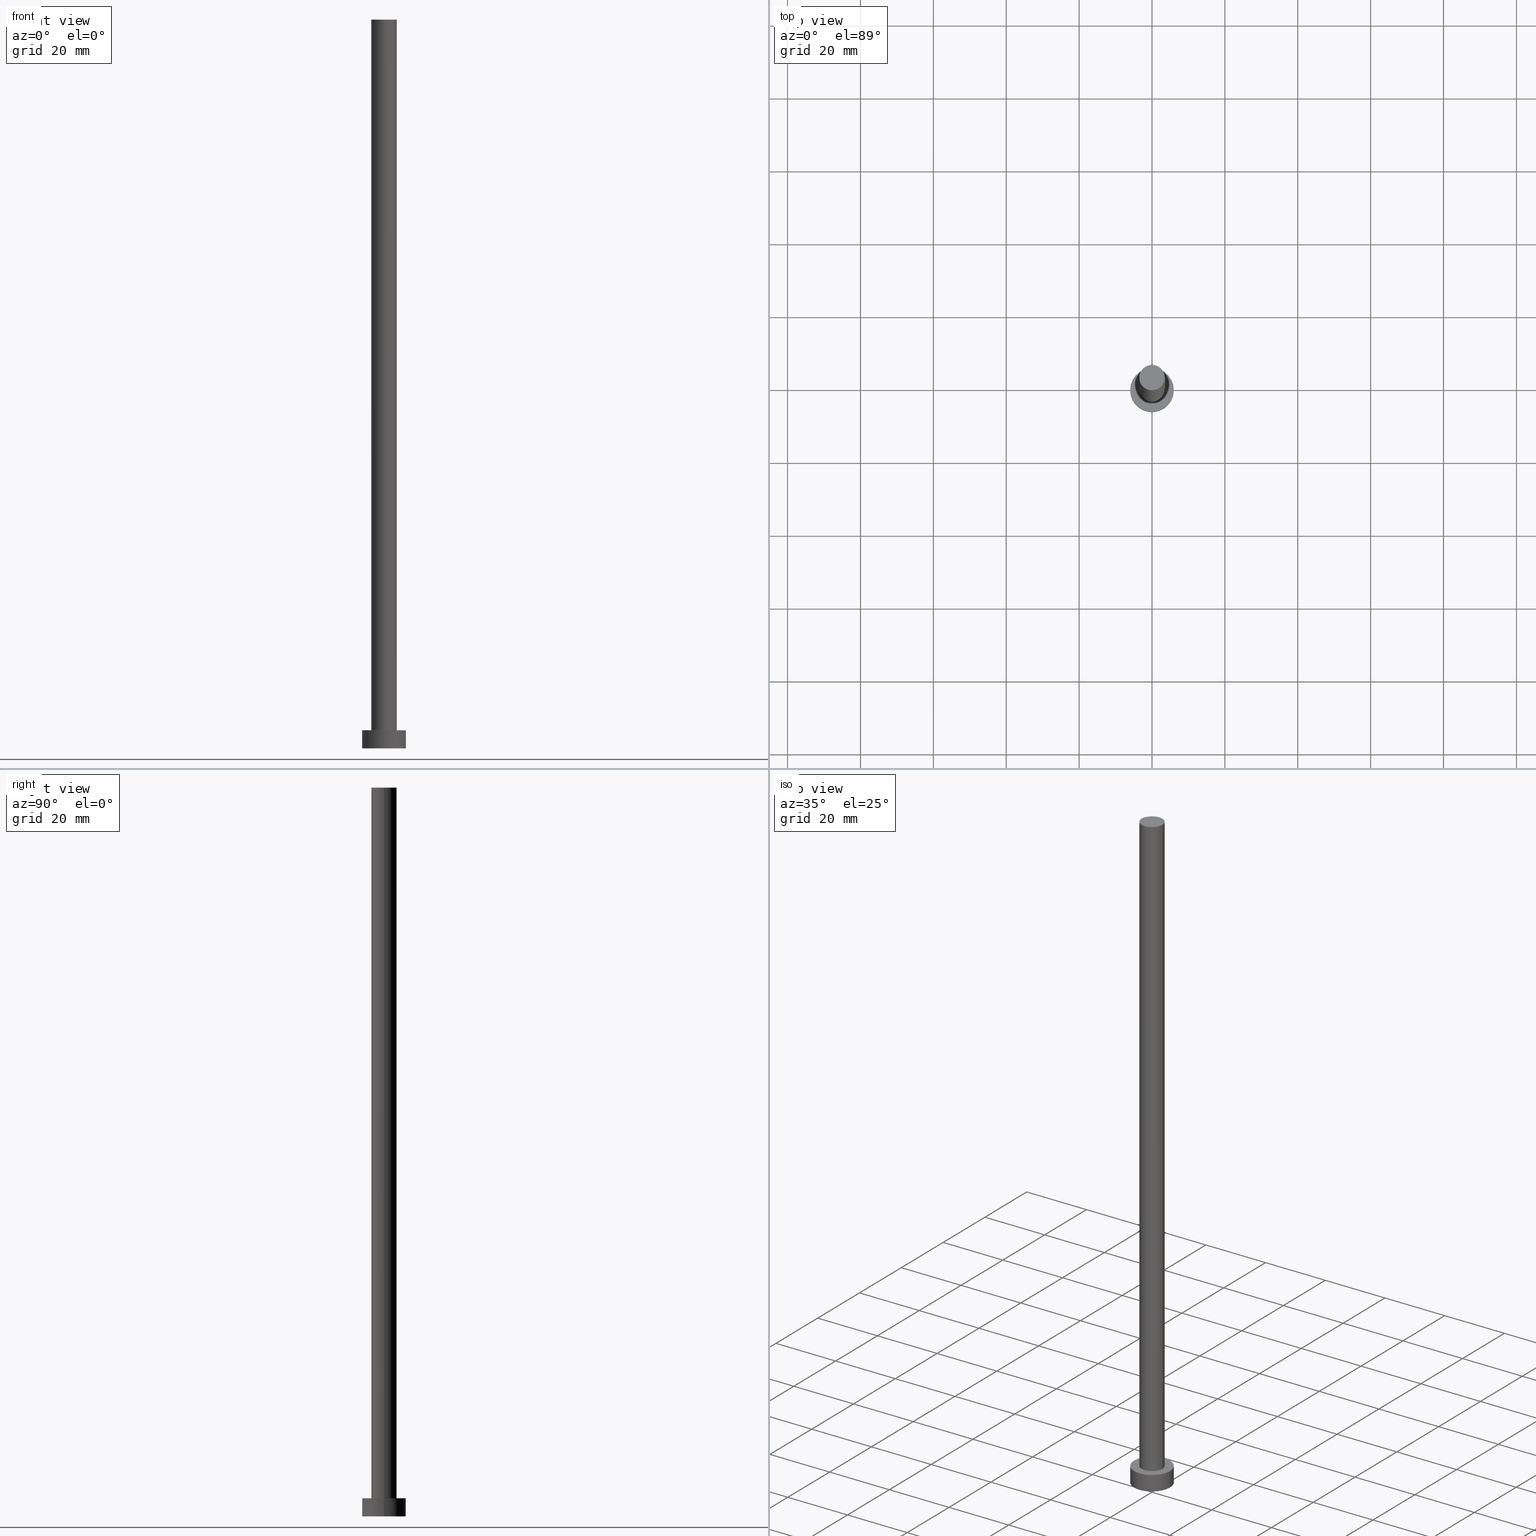
[diagram: canonical four-view strip — front | top / right | iso, engineering-drawing reading convention]
A machine part, canonical four-view strip (front | top / right | iso — engineering-drawing reading convention). The complete STEP part file that produces these views, byte-faithful:
ISO-10303-21;
HEADER;
FILE_DESCRIPTION (( 'STEP AP203' ),
    '1' );
FILE_NAME ('d8b9.STEP',
    '2023-02-12T11:29:27',
    ( '' ),
    ( '' ),
    'SwSTEP 2.0',
    'SolidWorks 2019',
    '' );
FILE_SCHEMA (( 'CONFIG_CONTROL_DESIGN' ));
ENDSEC;

DATA;
#1 = PERSON_AND_ORGANIZATION_ROLE ( 'creator' ) ;
#2 = DIRECTION ( 'NONE',  ( 0.000000000000000000, 0.000000000000000000, 1.000000000000000000 ) ) ;
#3 = CALENDAR_DATE ( 2023, 12, 2 ) ;
#4 = ORIENTED_EDGE ( 'NONE', *, *, #112, .F. ) ;
#5 = PERSON_AND_ORGANIZATION ( #86, #62 ) ;
#6 = VERTEX_POINT ( 'NONE', #33 ) ;
#7 = CIRCLE ( 'NONE', #61, 6.000000000000000888 ) ;
#8 = CC_DESIGN_APPROVAL ( #168, ( #133 ) ) ;
#9 = ADVANCED_BREP_SHAPE_REPRESENTATION ( 'd8b9', ( #42, #156 ), #165 ) ;
#10 = VERTEX_POINT ( 'NONE', #140 ) ;
#11 = DIRECTION ( 'NONE',  ( 1.000000000000000000, 0.000000000000000000, -0.000000000000000000 ) ) ;
#12 = SECURITY_CLASSIFICATION_LEVEL ( 'unclassified' ) ;
#13 = CARTESIAN_POINT ( 'NONE',  ( 0.000000000000000000, 0.000000000000000000, 5.000000000000000000 ) ) ;
#14 = VECTOR ( 'NONE', #58, 1000.000000000000000 ) ;
#15 = DIRECTION ( 'NONE',  ( 0.000000000000000000, 0.000000000000000000, 1.000000000000000000 ) ) ;
#16 = PERSON_AND_ORGANIZATION_ROLE ( 'creator' ) ;
#17 = DIRECTION ( 'NONE',  ( 0.000000000000000000, 0.000000000000000000, 1.000000000000000000 ) ) ;
#18 = ORIENTED_EDGE ( 'NONE', *, *, #66, .F. ) ;
#19 = ADVANCED_FACE ( 'NONE', ( #97, #100 ), #254, .T. ) ;
#20 = AXIS2_PLACEMENT_3D ( 'NONE', #152, #55, #11 ) ;
#21 = EDGE_LOOP ( 'NONE', ( #214, #148 ) ) ;
#22 = DESIGN_CONTEXT ( 'detailed design', #170, 'design' ) ;
#23 = EDGE_CURVE ( 'NONE', #35, #6, #136, .T. ) ;
#24 = DIRECTION ( 'NONE',  ( 0.000000000000000000, 0.000000000000000000, 1.000000000000000000 ) ) ;
#25 = DIRECTION ( 'NONE',  ( 0.000000000000000000, 0.000000000000000000, 1.000000000000000000 ) ) ;
#26 = APPROVAL_DATE_TIME ( #67, #168 ) ;
#27 = DIRECTION ( 'NONE',  ( -0.000000000000000000, -0.000000000000000000, -1.000000000000000000 ) ) ;
#28 = EDGE_CURVE ( 'NONE', #128, #106, #130, .T. ) ;
#29 = DIRECTION ( 'NONE',  ( -1.000000000000000000, 0.000000000000000000, 0.000000000000000000 ) ) ;
#30 = ORIENTED_EDGE ( 'NONE', *, *, #207, .T. ) ;
#31 = CARTESIAN_POINT ( 'NONE',  ( -3.500000000000000000, 0.000000000000000000, 200.0000000000000000 ) ) ;
#32 = PRODUCT_DEFINITION_FORMATION_WITH_SPECIFIED_SOURCE ( 'LIBOVOLN�', '', #73, .NOT_KNOWN. ) ;
#33 = CARTESIAN_POINT ( 'NONE',  ( -3.500000000000000000, 0.000000000000000000, 5.000000000000000000 ) ) ;
#34 = EDGE_CURVE ( 'NONE', #69, #81, #101, .T. ) ;
#35 = VERTEX_POINT ( 'NONE', #191 ) ;
#36 = FACE_OUTER_BOUND ( 'NONE', #68, .T. ) ;
#37 = ORIENTED_EDGE ( 'NONE', *, *, #23, .F. ) ;
#38 = ORIENTED_EDGE ( 'NONE', *, *, #28, .T. ) ;
#39 = EDGE_LOOP ( 'NONE', ( #111, #30, #38, #4 ) ) ;
#40 = DIRECTION ( 'NONE',  ( 1.000000000000000000, 0.000000000000000000, 0.000000000000000000 ) ) ;
#41 = EDGE_CURVE ( 'NONE', #81, #69, #7, .T. ) ;
#42 = MANIFOLD_SOLID_BREP ( 'P�idat vysunut�m3', #224 ) ;
#43 = DIRECTION ( 'NONE',  ( -1.000000000000000000, 0.000000000000000000, 0.000000000000000000 ) ) ;
#44 = CALENDAR_DATE ( 2023, 12, 2 ) ;
#45 = AXIS2_PLACEMENT_3D ( 'NONE', #182, #2, #49 ) ;
#46 = COORDINATED_UNIVERSAL_TIME_OFFSET ( 1, 0, .AHEAD. ) ;
#47 = CARTESIAN_POINT ( 'NONE',  ( 0.000000000000000000, 0.000000000000000000, 5.000000000000000000 ) ) ;
#48 = PRODUCT_RELATED_PRODUCT_CATEGORY ( 'detail', '', ( #73 ) ) ;
#49 = DIRECTION ( 'NONE',  ( 1.000000000000000000, 0.000000000000000000, 0.000000000000000000 ) ) ;
#50 = COORDINATED_UNIVERSAL_TIME_OFFSET ( 1, 0, .AHEAD. ) ;
#51 = CC_DESIGN_PERSON_AND_ORGANIZATION_ASSIGNMENT ( #249, #16, ( #133 ) ) ;
#52 = ORIENTED_EDGE ( 'NONE', *, *, #66, .T. ) ;
#53 = ORIENTED_EDGE ( 'NONE', *, *, #89, .F. ) ;
#54 = ORIENTED_EDGE ( 'NONE', *, *, #34, .F. ) ;
#55 = DIRECTION ( 'NONE',  ( 0.000000000000000000, 0.000000000000000000, 1.000000000000000000 ) ) ;
#56 = AXIS2_PLACEMENT_3D ( 'NONE', #131, #70, #200 ) ;
#57 = DATE_TIME_ROLE ( 'creation_date' ) ;
#58 = DIRECTION ( 'NONE',  ( -0.000000000000000000, -0.000000000000000000, -1.000000000000000000 ) ) ;
#59 = ADVANCED_FACE ( 'NONE', ( #232 ), #125, .T. ) ;
#60 = CARTESIAN_POINT ( 'NONE',  ( 6.000000000000000888, 7.347880794884120722E-16, 5.000000000000000000 ) ) ;
#61 = AXIS2_PLACEMENT_3D ( 'NONE', #13, #138, #158 ) ;
#62 = ORGANIZATION ( 'NEUR�EN�', 'NEUR�EN�', '' ) ;
#63 = FACE_OUTER_BOUND ( 'NONE', #39, .T. ) ;
#64 = PERSON_AND_ORGANIZATION ( #86, #62 ) ;
#65 = MECHANICAL_CONTEXT ( 'NONE', #154, 'mechanical' ) ;
#66 = EDGE_CURVE ( 'NONE', #106, #128, #108, .T. ) ;
#67 = DATE_AND_TIME ( #3, #244 ) ;
#68 = EDGE_LOOP ( 'NONE', ( #18, #173 ) ) ;
#69 = VERTEX_POINT ( 'NONE', #159 ) ;
#70 = DIRECTION ( 'NONE',  ( 0.000000000000000000, 0.000000000000000000, 1.000000000000000000 ) ) ;
#71 = LINE ( 'NONE', #93, #132 ) ;
#72 = CARTESIAN_POINT ( 'NONE',  ( 6.000000000000000888, 7.347880794884120722E-16, 0.000000000000000000 ) ) ;
#73 = PRODUCT ( 'd8b9', 'd8b9', '', ( #65 ) ) ;
#74 = AXIS2_PLACEMENT_3D ( 'NONE', #78, #15, #227 ) ;
#75 = LINE ( 'NONE', #92, #14 ) ;
#76 = ADVANCED_FACE ( 'NONE', ( #63 ), #210, .T. ) ;
#77 = DIRECTION ( 'NONE',  ( -1.000000000000000000, 0.000000000000000000, 0.000000000000000000 ) ) ;
#78 = CARTESIAN_POINT ( 'NONE',  ( 0.000000000000000000, 0.000000000000000000, 5.000000000000000000 ) ) ;
#79 = DIRECTION ( 'NONE',  ( -0.000000000000000000, -0.000000000000000000, -1.000000000000000000 ) ) ;
#80 = CARTESIAN_POINT ( 'NONE',  ( 0.000000000000000000, 0.000000000000000000, 0.000000000000000000 ) ) ;
#81 = VERTEX_POINT ( 'NONE', #60 ) ;
#82 = CC_DESIGN_PERSON_AND_ORGANIZATION_ASSIGNMENT ( #5, #1, ( #32 ) ) ;
#83 = DATE_AND_TIME ( #213, #236 ) ;
#84 = ORIENTED_EDGE ( 'NONE', *, *, #193, .F. ) ;
#85 = AXIS2_PLACEMENT_3D ( 'NONE', #234, #231, #77 ) ;
#86 = PERSON ( 'NEUR�EN�', 'NEUR�EN�', 'NEUR�EN�', ('NEUR�EN�'), ('NEUR�EN�'), ('NEUR�EN�') ) ;
#87 = ORIENTED_EDGE ( 'NONE', *, *, #193, .T. ) ;
#88 = DIRECTION ( 'NONE',  ( -0.000000000000000000, -0.000000000000000000, -1.000000000000000000 ) ) ;
#89 = EDGE_CURVE ( 'NONE', #6, #10, #120, .T. ) ;
#90 = PLANE ( 'NONE',  #20 ) ;
#91 = CARTESIAN_POINT ( 'NONE',  ( 3.500000000000000000, 4.286263797015736595E-16, 200.0000000000000000 ) ) ;
#92 = CARTESIAN_POINT ( 'NONE',  ( 3.500000000000000000, 4.286263797015736595E-16, 200.0000000000000000 ) ) ;
#93 = CARTESIAN_POINT ( 'NONE',  ( 6.000000000000000888, 7.347880794884120722E-16, 5.000000000000000000 ) ) ;
#94 = APPROVAL_ROLE ( '' ) ;
#95 = AXIS2_PLACEMENT_3D ( 'NONE', #220, #250, #40 ) ;
#96 = PERSON_AND_ORGANIZATION ( #86, #62 ) ;
#97 = FACE_BOUND ( 'NONE', #169, .T. ) ;
#98 = PERSON_AND_ORGANIZATION_ROLE ( 'classification_officer' ) ;
#99 = ORIENTED_EDGE ( 'NONE', *, *, #89, .T. ) ;
#100 = FACE_OUTER_BOUND ( 'NONE', #241, .T. ) ;
#101 = CIRCLE ( 'NONE', #74, 6.000000000000000888 ) ;
#102 = PERSON_AND_ORGANIZATION ( #86, #62 ) ;
#103 = PERSON_AND_ORGANIZATION_ROLE ( 'design_owner' ) ;
#104 = DIRECTION ( 'NONE',  ( 0.000000000000000000, 0.000000000000000000, 1.000000000000000000 ) ) ;
#105 = CYLINDRICAL_SURFACE ( 'NONE', #113, 3.500000000000000000 ) ;
#106 = VERTEX_POINT ( 'NONE', #240 ) ;
#107 = ADVANCED_FACE ( 'NONE', ( #36 ), #110, .F. ) ;
#108 = CIRCLE ( 'NONE', #221, 6.000000000000000888 ) ;
#109 = CC_DESIGN_APPROVAL ( #119, ( #32 ) ) ;
#110 = PLANE ( 'NONE',  #247 ) ;
#111 = ORIENTED_EDGE ( 'NONE', *, *, #41, .F. ) ;
#112 = EDGE_CURVE ( 'NONE', #69, #106, #215, .T. ) ;
#113 = AXIS2_PLACEMENT_3D ( 'NONE', #223, #116, #43 ) ;
#114 = CARTESIAN_POINT ( 'NONE',  ( -6.000000000000000888, 0.000000000000000000, 5.000000000000000000 ) ) ;
#115 = CYLINDRICAL_SURFACE ( 'NONE', #197, 3.500000000000000000 ) ;
#116 = DIRECTION ( 'NONE',  ( -0.000000000000000000, -0.000000000000000000, -1.000000000000000000 ) ) ;
#117 = APPROVAL_STATUS ( 'not_yet_approved' ) ;
#118 = APPROVAL_STATUS ( 'not_yet_approved' ) ;
#119 = APPROVAL ( #180, 'NEUR�EN�' ) ;
#120 = CIRCLE ( 'NONE', #174, 3.500000000000000000 ) ;
#121 = DATE_TIME_ROLE ( 'classification_date' ) ;
#122 = CC_DESIGN_DATE_AND_TIME_ASSIGNMENT ( #206, #57, ( #133 ) ) ;
#123 = DIRECTION ( 'NONE',  ( 0.000000000000000000, 0.000000000000000000, 1.000000000000000000 ) ) ;
#124 = LOCAL_TIME ( 12, 29, 27.00000000000000000, #226 ) ;
#125 = CYLINDRICAL_SURFACE ( 'NONE', #228, 6.000000000000000888 ) ;
#126 = ORIENTED_EDGE ( 'NONE', *, *, #112, .T. ) ;
#127 = PERSON_AND_ORGANIZATION ( #86, #62 ) ;
#128 = VERTEX_POINT ( 'NONE', #72 ) ;
#129 = ORIENTED_EDGE ( 'NONE', *, *, #187, .F. ) ;
#130 = CIRCLE ( 'NONE', #45, 6.000000000000000888 ) ;
#131 = CARTESIAN_POINT ( 'NONE',  ( 0.000000000000000000, 0.000000000000000000, 200.0000000000000000 ) ) ;
#132 = VECTOR ( 'NONE', #27, 1000.000000000000000 ) ;
#133 = PRODUCT_DEFINITION ( 'NEZN�M�', '', #32, #22 ) ;
#134 = UNCERTAINTY_MEASURE_WITH_UNIT (LENGTH_MEASURE( 1.000000000000000082E-05 ), #202, 'distance_accuracy_value', 'NONE');
#135 = ADVANCED_FACE ( 'NONE', ( #211 ), #105, .T. ) ;
#136 = LINE ( 'NONE', #31, #190 ) ;
#137 = APPLICATION_PROTOCOL_DEFINITION ( 'international standard', 'config_control_design', 1994, #154 ) ;
#138 = DIRECTION ( 'NONE',  ( 0.000000000000000000, 0.000000000000000000, 1.000000000000000000 ) ) ;
#139 = APPROVAL_PERSON_ORGANIZATION ( #127, #119, #94 ) ;
#140 = CARTESIAN_POINT ( 'NONE',  ( 3.500000000000000000, 4.286263797015736595E-16, 5.000000000000000000 ) ) ;
#141 = PERSON_AND_ORGANIZATION ( #86, #62 ) ;
#142 = DIRECTION ( 'NONE',  ( -0.000000000000000000, -0.000000000000000000, -1.000000000000000000 ) ) ;
#143 = APPROVAL_ROLE ( '' ) ;
#144 = EDGE_LOOP ( 'NONE', ( #217, #54, #126, #52 ) ) ;
#145 = COORDINATED_UNIVERSAL_TIME_OFFSET ( 1, 0, .AHEAD. ) ;
#146 = EDGE_LOOP ( 'NONE', ( #129, #189, #198, #99 ) ) ;
#147 = AXIS2_PLACEMENT_3D ( 'NONE', #163, #161, #229 ) ;
#148 = ORIENTED_EDGE ( 'NONE', *, *, #225, .T. ) ;
#149 = EDGE_CURVE ( 'NONE', #35, #242, #248, .T. ) ;
#150 = DIRECTION ( 'NONE',  ( 1.000000000000000000, 0.000000000000000000, 0.000000000000000000 ) ) ;
#151 = LOCAL_TIME ( 12, 29, 27.00000000000000000, #145 ) ;
#152 = CARTESIAN_POINT ( 'NONE',  ( 0.000000000000000000, 0.000000000000000000, 200.0000000000000000 ) ) ;
#153 = DIRECTION ( 'NONE',  ( -1.000000000000000000, 0.000000000000000000, 0.000000000000000000 ) ) ;
#154 = APPLICATION_CONTEXT ( 'configuration controlled 3d designs of mechanical parts and assemblies' ) ;
#155 = DIRECTION ( 'NONE',  ( 1.000000000000000000, 0.000000000000000000, -0.000000000000000000 ) ) ;
#156 = AXIS2_PLACEMENT_3D ( 'NONE', #80, #104, #162 ) ;
#157 = APPLICATION_PROTOCOL_DEFINITION ( 'international standard', 'config_control_design', 1994, #170 ) ;
#158 = DIRECTION ( 'NONE',  ( 1.000000000000000000, 0.000000000000000000, 0.000000000000000000 ) ) ;
#159 = CARTESIAN_POINT ( 'NONE',  ( -6.000000000000000888, 0.000000000000000000, 5.000000000000000000 ) ) ;
#160 = APPROVAL_PERSON_ORGANIZATION ( #96, #178, #230 ) ;
#161 = DIRECTION ( 'NONE',  ( 0.000000000000000000, 0.000000000000000000, 1.000000000000000000 ) ) ;
#162 = DIRECTION ( 'NONE',  ( 1.000000000000000000, 0.000000000000000000, 0.000000000000000000 ) ) ;
#163 = CARTESIAN_POINT ( 'NONE',  ( 0.000000000000000000, 0.000000000000000000, 5.000000000000000000 ) ) ;
#164 = CC_DESIGN_PERSON_AND_ORGANIZATION_ASSIGNMENT ( #141, #103, ( #73 ) ) ;
#165 =( GEOMETRIC_REPRESENTATION_CONTEXT ( 3 ) GLOBAL_UNCERTAINTY_ASSIGNED_CONTEXT ( ( #134 ) ) GLOBAL_UNIT_ASSIGNED_CONTEXT ( ( #202, #246, #192 ) ) REPRESENTATION_CONTEXT ( 'NONE', 'WORKASPACE' ) );
#166 = CIRCLE ( 'NONE', #56, 3.500000000000000000 ) ;
#167 = APPROVAL_DATE_TIME ( #83, #119 ) ;
#168 = APPROVAL ( #118, 'NEUR�EN�' ) ;
#169 = EDGE_LOOP ( 'NONE', ( #53, #84 ) ) ;
#170 = APPLICATION_CONTEXT ( 'configuration controlled 3d designs of mechanical parts and assemblies' ) ;
#171 = CC_DESIGN_APPROVAL ( #178, ( #208 ) ) ;
#172 = ORIENTED_EDGE ( 'NONE', *, *, #187, .T. ) ;
#173 = ORIENTED_EDGE ( 'NONE', *, *, #28, .F. ) ;
#174 = AXIS2_PLACEMENT_3D ( 'NONE', #47, #17, #237 ) ;
#175 = APPROVAL_PERSON_ORGANIZATION ( #102, #168, #143 ) ;
#176 = FACE_OUTER_BOUND ( 'NONE', #146, .T. ) ;
#177 = PRODUCT_DEFINITION_SHAPE ( 'NONE', 'NONE',  #133 ) ;
#178 = APPROVAL ( #117, 'NEUR�EN�' ) ;
#179 = PERSON_AND_ORGANIZATION_ROLE ( 'design_supplier' ) ;
#180 = APPROVAL_STATUS ( 'not_yet_approved' ) ;
#181 = FACE_OUTER_BOUND ( 'NONE', #21, .T. ) ;
#182 = CARTESIAN_POINT ( 'NONE',  ( 0.000000000000000000, 0.000000000000000000, 0.000000000000000000 ) ) ;
#183 = DATE_AND_TIME ( #44, #124 ) ;
#184 = CIRCLE ( 'NONE', #95, 3.500000000000000000 ) ;
#185 = CARTESIAN_POINT ( 'NONE',  ( 0.000000000000000000, 0.000000000000000000, 0.000000000000000000 ) ) ;
#186 = CALENDAR_DATE ( 2023, 12, 2 ) ;
#187 = EDGE_CURVE ( 'NONE', #242, #10, #75, .T. ) ;
#188 = APPROVAL_DATE_TIME ( #205, #178 ) ;
#189 = ORIENTED_EDGE ( 'NONE', *, *, #149, .F. ) ;
#190 = VECTOR ( 'NONE', #79, 1000.000000000000000 ) ;
#191 = CARTESIAN_POINT ( 'NONE',  ( -3.500000000000000000, 0.000000000000000000, 200.0000000000000000 ) ) ;
#192 =( NAMED_UNIT ( * ) SI_UNIT ( $, .STERADIAN. ) SOLID_ANGLE_UNIT ( ) );
#193 = EDGE_CURVE ( 'NONE', #10, #6, #184, .T. ) ;
#194 = AXIS2_PLACEMENT_3D ( 'NONE', #199, #24, #150 ) ;
#195 = LOCAL_TIME ( 12, 29, 27.00000000000000000, #46 ) ;
#196 = EDGE_LOOP ( 'NONE', ( #239, #172, #87, #37 ) ) ;
#197 = AXIS2_PLACEMENT_3D ( 'NONE', #245, #201, #153 ) ;
#198 = ORIENTED_EDGE ( 'NONE', *, *, #23, .T. ) ;
#199 = CARTESIAN_POINT ( 'NONE',  ( 0.000000000000000000, 0.000000000000000000, 200.0000000000000000 ) ) ;
#200 = DIRECTION ( 'NONE',  ( 1.000000000000000000, 0.000000000000000000, 0.000000000000000000 ) ) ;
#201 = DIRECTION ( 'NONE',  ( -0.000000000000000000, -0.000000000000000000, -1.000000000000000000 ) ) ;
#202 =( LENGTH_UNIT ( ) NAMED_UNIT ( * ) SI_UNIT ( .MILLI., .METRE. ) );
#203 = CC_DESIGN_PERSON_AND_ORGANIZATION_ASSIGNMENT ( #64, #98, ( #208 ) ) ;
#204 = CARTESIAN_POINT ( 'NONE',  ( 0.000000000000000000, 0.000000000000000000, 0.000000000000000000 ) ) ;
#205 = DATE_AND_TIME ( #186, #195 ) ;
#206 = DATE_AND_TIME ( #238, #151 ) ;
#207 = EDGE_CURVE ( 'NONE', #81, #128, #71, .T. ) ;
#208 = SECURITY_CLASSIFICATION ( '', '', #12 ) ;
#209 = CARTESIAN_POINT ( 'NONE',  ( 0.000000000000000000, 0.000000000000000000, 5.000000000000000000 ) ) ;
#210 = CYLINDRICAL_SURFACE ( 'NONE', #85, 6.000000000000000888 ) ;
#211 = FACE_OUTER_BOUND ( 'NONE', #196, .T. ) ;
#212 = PERSON_AND_ORGANIZATION ( #86, #62 ) ;
#213 = CALENDAR_DATE ( 2023, 12, 2 ) ;
#214 = ORIENTED_EDGE ( 'NONE', *, *, #149, .T. ) ;
#215 = LINE ( 'NONE', #114, #216 ) ;
#216 = VECTOR ( 'NONE', #88, 1000.000000000000000 ) ;
#217 = ORIENTED_EDGE ( 'NONE', *, *, #207, .F. ) ;
#218 = ORIENTED_EDGE ( 'NONE', *, *, #34, .T. ) ;
#219 = ORIENTED_EDGE ( 'NONE', *, *, #41, .T. ) ;
#220 = CARTESIAN_POINT ( 'NONE',  ( 0.000000000000000000, 0.000000000000000000, 5.000000000000000000 ) ) ;
#221 = AXIS2_PLACEMENT_3D ( 'NONE', #185, #123, #251 ) ;
#222 = ADVANCED_FACE ( 'NONE', ( #181 ), #90, .T. ) ;
#223 = CARTESIAN_POINT ( 'NONE',  ( 0.000000000000000000, 0.000000000000000000, 200.0000000000000000 ) ) ;
#224 = CLOSED_SHELL ( 'NONE', ( #135, #76, #59, #19, #107, #243, #222 ) ) ;
#225 = EDGE_CURVE ( 'NONE', #242, #35, #166, .T. ) ;
#226 = COORDINATED_UNIVERSAL_TIME_OFFSET ( 1, 0, .AHEAD. ) ;
#227 = DIRECTION ( 'NONE',  ( 1.000000000000000000, 0.000000000000000000, 0.000000000000000000 ) ) ;
#228 = AXIS2_PLACEMENT_3D ( 'NONE', #209, #142, #29 ) ;
#229 = DIRECTION ( 'NONE',  ( 1.000000000000000000, 0.000000000000000000, -0.000000000000000000 ) ) ;
#230 = APPROVAL_ROLE ( '' ) ;
#231 = DIRECTION ( 'NONE',  ( -0.000000000000000000, -0.000000000000000000, -1.000000000000000000 ) ) ;
#232 = FACE_OUTER_BOUND ( 'NONE', #144, .T. ) ;
#233 = CC_DESIGN_DATE_AND_TIME_ASSIGNMENT ( #183, #121, ( #208 ) ) ;
#234 = CARTESIAN_POINT ( 'NONE',  ( 0.000000000000000000, 0.000000000000000000, 5.000000000000000000 ) ) ;
#235 = COORDINATED_UNIVERSAL_TIME_OFFSET ( 1, 0, .AHEAD. ) ;
#236 = LOCAL_TIME ( 12, 29, 27.00000000000000000, #50 ) ;
#237 = DIRECTION ( 'NONE',  ( 1.000000000000000000, 0.000000000000000000, 0.000000000000000000 ) ) ;
#238 = CALENDAR_DATE ( 2023, 12, 2 ) ;
#239 = ORIENTED_EDGE ( 'NONE', *, *, #225, .F. ) ;
#240 = CARTESIAN_POINT ( 'NONE',  ( -6.000000000000000888, 0.000000000000000000, 0.000000000000000000 ) ) ;
#241 = EDGE_LOOP ( 'NONE', ( #218, #219 ) ) ;
#242 = VERTEX_POINT ( 'NONE', #91 ) ;
#243 = ADVANCED_FACE ( 'NONE', ( #176 ), #115, .T. ) ;
#244 = LOCAL_TIME ( 12, 29, 27.00000000000000000, #235 ) ;
#245 = CARTESIAN_POINT ( 'NONE',  ( 0.000000000000000000, 0.000000000000000000, 200.0000000000000000 ) ) ;
#246 =( NAMED_UNIT ( * ) PLANE_ANGLE_UNIT ( ) SI_UNIT ( $, .RADIAN. ) );
#247 = AXIS2_PLACEMENT_3D ( 'NONE', #204, #25, #155 ) ;
#248 = CIRCLE ( 'NONE', #194, 3.500000000000000000 ) ;
#249 = PERSON_AND_ORGANIZATION ( #86, #62 ) ;
#250 = DIRECTION ( 'NONE',  ( 0.000000000000000000, 0.000000000000000000, 1.000000000000000000 ) ) ;
#251 = DIRECTION ( 'NONE',  ( 1.000000000000000000, 0.000000000000000000, 0.000000000000000000 ) ) ;
#252 = SHAPE_DEFINITION_REPRESENTATION ( #177, #9 ) ;
#253 = CC_DESIGN_PERSON_AND_ORGANIZATION_ASSIGNMENT ( #212, #179, ( #32 ) ) ;
#254 = PLANE ( 'NONE',  #147 ) ;
#255 = CC_DESIGN_SECURITY_CLASSIFICATION ( #208, ( #32 ) ) ;
ENDSEC;
END-ISO-10303-21;
